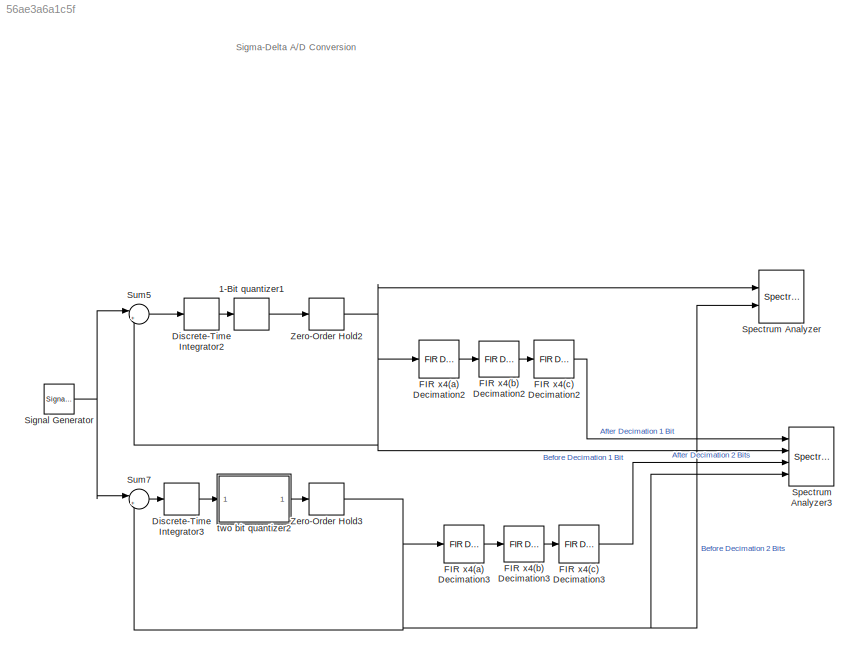
MODEL slx_56ae3a6a1c5f
KIND model
CONFIG AbsTol = 1e-6
CONFIG FixedStep = auto
CONFIG MaxStep = 1/512000
CONFIG MinStep = auto
CONFIG RelTol = 1e-3
CONFIG SampleTimeConstraint = Unconstrained
CONFIG Solver = ode5
CONFIG SolverMode = SingleTasking
CONFIG SolverName = ode5
CONFIG StartTime = 0.0
CONFIG StopTime = 5
BLOCK [Signum] 1-Bit quantizer1
BLOCK [DiscreteIntegrator] Discrete-Time Integrator2
  ICPrevOutput = DiscIntNeverNeededParam
  ICPrevScaledInput = DiscIntNeverNeededParam
  InitialConditionSetting = State (most efficient)
  Ports = [1, 1]
  SampleTime = 1/512000
BLOCK [DiscreteIntegrator] Discrete-Time Integrator3
  ICPrevOutput = DiscIntNeverNeededParam
  ICPrevScaledInput = DiscIntNeverNeededParam
  InitialConditionSetting = State (most efficient)
  Ports = [1, 1]
  SampleTime = 1/512000
BLOCK [Reference] FIR x4(a) Decimation2  REF=dspmlti4/FIR
Decimation
  Ports = [1, 1]
  SourceBlock = dspmlti4/FIR\nDecimation
  SourceType = FIR Decimation
  UserDataPersistent = on
BLOCK [Reference] FIR x4(a) Decimation3  REF=dspmlti4/FIR
Decimation
  Ports = [1, 1]
  SourceBlock = dspmlti4/FIR\nDecimation
  SourceType = FIR Decimation
  UserDataPersistent = on
BLOCK [Reference] FIR x4(b) Decimation2  REF=dspmlti4/FIR
Decimation
  Ports = [1, 1]
  SourceBlock = dspmlti4/FIR\nDecimation
  SourceType = FIR Decimation
  UserDataPersistent = on
BLOCK [Reference] FIR x4(b) Decimation3  REF=dspmlti4/FIR
Decimation
  Ports = [1, 1]
  SourceBlock = dspmlti4/FIR\nDecimation
  SourceType = FIR Decimation
  UserDataPersistent = on
BLOCK [Reference] FIR x4(c) Decimation2  REF=dspmlti4/FIR
Decimation
  Ports = [1, 1]
  SourceBlock = dspmlti4/FIR\nDecimation
  SourceType = FIR Decimation
  UserDataPersistent = on
BLOCK [Reference] FIR x4(c) Decimation3  REF=dspmlti4/FIR
Decimation
  Ports = [1, 1]
  SourceBlock = dspmlti4/FIR\nDecimation
  SourceType = FIR Decimation
  UserDataPersistent = on
BLOCK [SignalGenerator] Signal Generator
  Frequency = 1000
  Ports = [0, 1]
BLOCK [SpectrumAnalyzer] Spectrum Analyzer
  NumInputPorts = 2
  Ports = [2]
  ScopeSpecificationString = spbscopes.SpectrumAnalyzerBlockCfg('CurrentConfiguration', extmgr.ConfigurationSet(extmgr.Configuration('Core','General UI',true),extmgr.Configuration('Core','Source UI',true),extmgr.Configuration('Sources','WiredSimulink',true),extmgr.Configuration('Sources','Simulink',false),extmgr.Configuration('Sources','SimulinkEvent',false),extmgr.Configuration('Sources','File',false),extmgr.Configuration('S...<+3154ch>
BLOCK [SpectrumAnalyzer] Spectrum Analyzer3
  NumInputPorts = 4
  Ports = [4]
  ScopeSpecificationString = spbscopes.SpectrumAnalyzerBlockCfg('CurrentConfiguration', extmgr.ConfigurationSet(extmgr.Configuration('Core','General UI',true),extmgr.Configuration('Core','Source UI',true),extmgr.Configuration('Sources','WiredSimulink',true),extmgr.Configuration('Sources','Simulink',false),extmgr.Configuration('Sources','SimulinkEvent',false),extmgr.Configuration('Sources','File',false),extmgr.Configuration('S...<+3443ch>
BLOCK [Sum] Sum5
  IconShape = round
  InputSameDT = off
  Inputs = |+-
  OutDataTypeStr = Inherit: Inherit via internal rule
  Ports = [2, 1]
  SaturateOnIntegerOverflow = off
BLOCK [Sum] Sum7
  IconShape = round
  InputSameDT = off
  Inputs = |+-
  OutDataTypeStr = Inherit: Inherit via internal rule
  Ports = [2, 1]
  SaturateOnIntegerOverflow = off
BLOCK [ZeroOrderHold] Zero-Order Hold2
  SampleTime = 1/512000
BLOCK [ZeroOrderHold] Zero-Order Hold3
  SampleTime = 1/512000
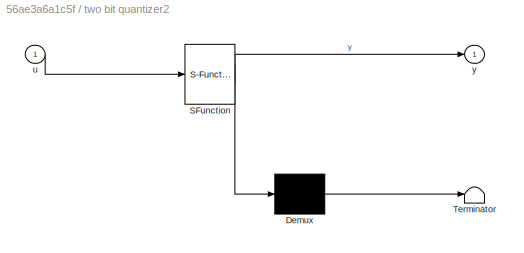
BLOCK [SubSystem] two bit quantizer2
  ErrorFcn = Stateflow.Translate.translate
  PermitHierarchicalResolution = ExplicitOnly
  Ports = [1, 1]
  RequestExecContextInheritance = off
  SFBlockType = MATLAB Function
  TreatAsAtomicUnit = on
  Variant = off
BLOCK [Demux] two bit quantizer2/ Demux 
  Outputs = 1
  Ports = [1, 1]
BLOCK [S-Function] two bit quantizer2/ SFunction 
  EnableBusSupport = on
  FunctionName = sf_sfun
  PortCounts = [1 2]
  Ports = [1, 2]
  SFunctionDeploymentMode = off
  Tag = Stateflow S-Function noise_with2bit 2
BLOCK [Terminator] two bit quantizer2/ Terminator 
BLOCK [Inport] two bit quantizer2/u
  IconDisplay = Port number
BLOCK [Outport] two bit quantizer2/y
  IconDisplay = Port number
ANNOTATION (root): Sigma-Delta A/D Conversion
LINE 1-Bit quantizer1:1 -> Zero-Order Hold2:1
LINE Discrete-Time Integrator2:1 -> 1-Bit quantizer1:1
LINE Discrete-Time Integrator3:1 -> two bit quantizer2:1
LINE FIR x4(a) Decimation2:1 -> FIR x4(b) Decimation2:1
LINE FIR x4(a) Decimation3:1 -> FIR x4(b) Decimation3:1
LINE FIR x4(b) Decimation2:1 -> FIR x4(c) Decimation2:1
LINE FIR x4(b) Decimation3:1 -> FIR x4(c) Decimation3:1
LINE FIR x4(c) Decimation2:1 -> Spectrum Analyzer3:1
LINE FIR x4(c) Decimation3:1 -> Spectrum Analyzer3:3
NET Signal Generator:1 -> Sum5:1, Sum7:1
LINE Sum5:1 -> Discrete-Time Integrator2:1
LINE Sum7:1 -> Discrete-Time Integrator3:1
NET Zero-Order Hold2:1 -> FIR x4(a) Decimation2:1, Spectrum Analyzer3:2, Spectrum Analyzer:1, Sum5:2
NET Zero-Order Hold3:1 -> FIR x4(a) Decimation3:1, Spectrum Analyzer3:4, Spectrum Analyzer:2, Sum7:2
LINE two bit quantizer2:1 -> Zero-Order Hold3:1
note: NET lines group one-source signal fan-out (src -> all destinations, sorted); 1:1 wires keep LINE
CHART two bit quantizer2 states=1 transitions=1
  STATE_LABEL 'eML_blk_kernel()'
  STATE_LABEL 'SCRIPT:\nfunction y = fcn(u)\nif 1/3 < u \n    y = 1;\nelseif -1/3 > u\n    y = -1;\nelseif u>=0\n    y = 1/3;\nelse\n    y = -1/3;\nend'
